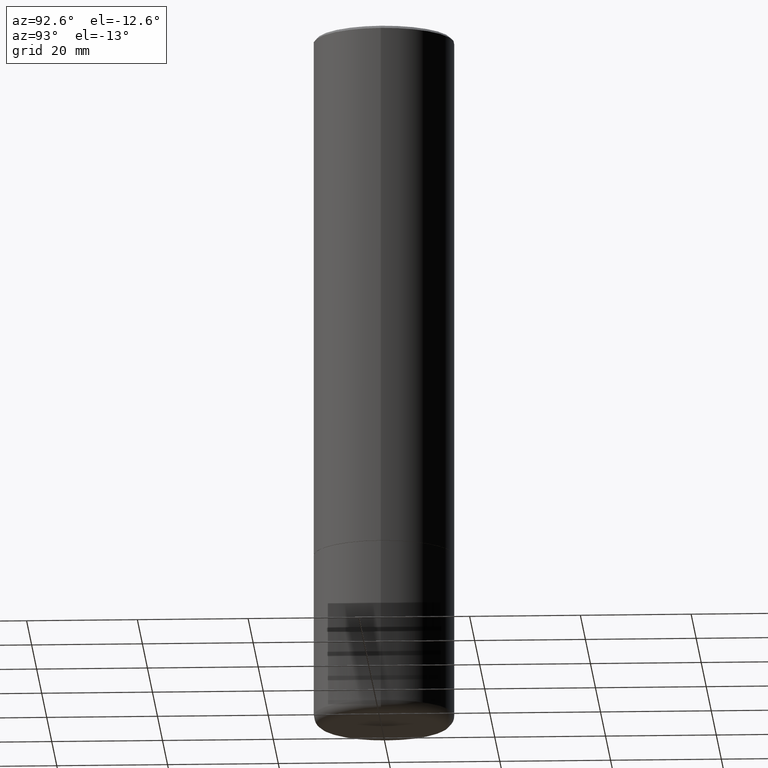
[diagram: clean part render]
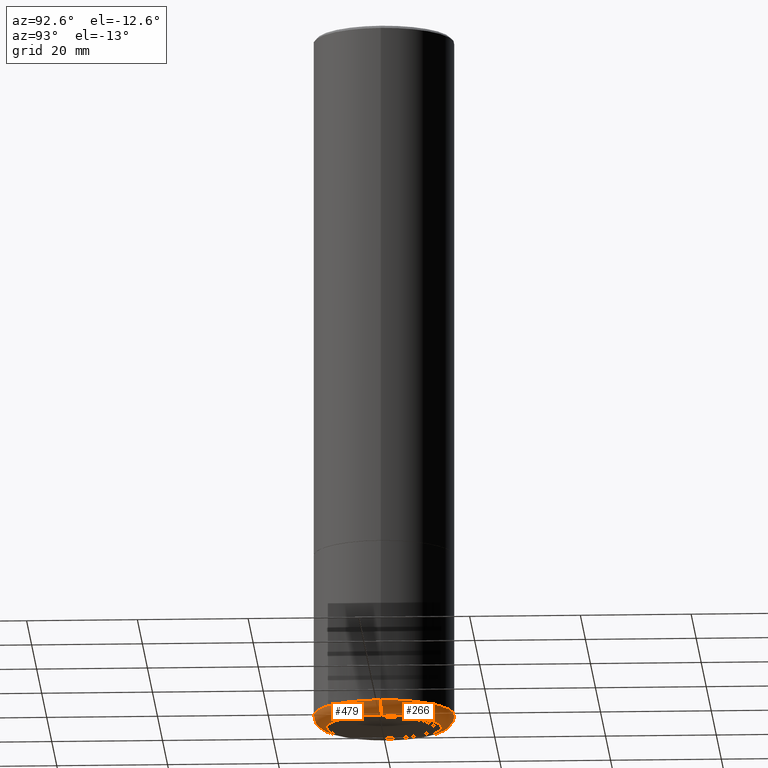
[diagram: same view with one multi-face feature highlighted, each face labeled with its STEP entity id]
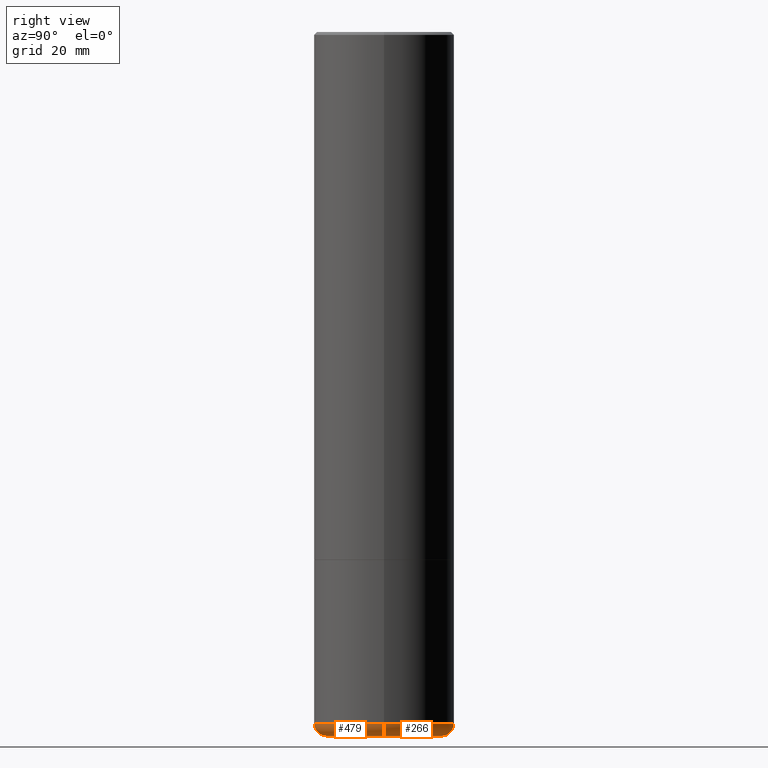
[diagram: same view with one multi-face feature highlighted, each face labeled with its STEP entity id]
A machine part, auxiliary view. The highlighted faces form ONE feature: a constant-radius fillet chain: 2 tangent blend faces with common blend radius 2.286 mm. The faces share edges in the B-rep.
A second angle (right view) of the same feature is appended — it is thin or edge-on in the first view.
Their STEP definitions:
[1] entity #266 (Torus):
#7 = DIRECTION ( 'NONE',  ( 7.105427357601001859E-15, 1.000000000000000000, -3.491481338843145583E-15 ) ) ;
#12 = DIRECTION ( 'NONE',  ( 1.000000000000000000, -6.982962677686271444E-15, 0.000000000000000000 ) ) ;
#16 = DIRECTION ( 'NONE',  ( -1.000000000000000000, 7.105427357601001859E-15, 0.000000000000000000 ) ) ;
#27 = AXIS2_PLACEMENT_3D ( 'NONE', #322, #470, #136 ) ;
#31 = EDGE_CURVE ( 'NONE', #308, #450, #186, .T. ) ;
#51 = CIRCLE ( 'NONE', #329, 0.08999999999999985789 ) ;
#56 = ORIENTED_EDGE ( 'NONE', *, *, #78, .T. ) ;
#58 = CARTESIAN_POINT ( 'NONE',  ( -0.5000000000000001110, -1.156540650091130805E-14, -4.910003426924224534 ) ) ;
#59 = DIRECTION ( 'NONE',  ( -2.445468806185136597E-29, 3.491481338843145583E-15, 1.000000000000000000 ) ) ;
#63 = AXIS2_PLACEMENT_3D ( 'NONE', #157, #411, #382 ) ;
#78 = EDGE_CURVE ( 'NONE', #199, #450, #476, .T. ) ;
#79 = EDGE_CURVE ( 'NONE', #380, #199, #180, .T. ) ;
#81 = EDGE_LOOP ( 'NONE', ( #438, #56, #191, #272 ) ) ;
#90 = CARTESIAN_POINT ( 'NONE',  ( -0.4092146118051470660, -1.407011682816334222E-14, -5.000000000000000000 ) ) ;
#136 = DIRECTION ( 'NONE',  ( 1.000000000000000000, -6.982962677686265133E-15, 0.000000000000000000 ) ) ;
#154 = DIRECTION ( 'NONE',  ( 1.000000000000000000, -6.982962677686279332E-15, 0.000000000000000000 ) ) ;
#157 = CARTESIAN_POINT ( 'NONE',  ( 1.200726021880531330E-28, -1.714318533876182370E-14, -4.910003426924224534 ) ) ;
#180 = CIRCLE ( 'NONE', #406, 0.4092146118051470660 ) ;
#186 = CIRCLE ( 'NONE', #27, 0.5000000000000001110 ) ;
#190 = CARTESIAN_POINT ( 'NONE',  ( 0.4100000000000002531, -2.000620003661319368E-14, -4.910003426924224534 ) ) ;
#191 = ORIENTED_EDGE ( 'NONE', *, *, #31, .F. ) ;
#199 = VERTEX_POINT ( 'NONE', #90 ) ;
#202 = CARTESIAN_POINT ( 'NONE',  ( 0.4092146118051470660, -2.031493705561494790E-14, -5.000000000000000000 ) ) ;
#242 = CARTESIAN_POINT ( 'NONE',  ( 0.5000000000000001110, -2.063466667760495706E-14, -4.910003426924224534 ) ) ;
#266 = ADVANCED_FACE ( 'NONE', ( #316 ), #484, .T. ) ;
#272 = ORIENTED_EDGE ( 'NONE', *, *, #421, .F. ) ;
#308 = VERTEX_POINT ( 'NONE', #242 ) ;
#316 = FACE_OUTER_BOUND ( 'NONE', #81, .T. ) ;
#322 = CARTESIAN_POINT ( 'NONE',  ( 1.200726021880531330E-28, -1.714318533876182370E-14, -4.910003426924224534 ) ) ;
#329 = AXIS2_PLACEMENT_3D ( 'NONE', #190, #490, #154 ) ;
#335 = CARTESIAN_POINT ( 'NONE',  ( -0.4100000000000002531, -1.422996012214541193E-14, -4.910003426924224534 ) ) ;
#380 = VERTEX_POINT ( 'NONE', #202 ) ;
#382 = DIRECTION ( 'NONE',  ( 1.000000000000000000, -6.982962677686265133E-15, 4.883557194083112340E-29 ) ) ;
#406 = AXIS2_PLACEMENT_3D ( 'NONE', #472, #59, #12 ) ;
#411 = DIRECTION ( 'NONE',  ( -2.445468806185136597E-29, 3.491481338843145583E-15, 1.000000000000000000 ) ) ;
#421 = EDGE_CURVE ( 'NONE', #380, #308, #51, .T. ) ;
#438 = ORIENTED_EDGE ( 'NONE', *, *, #79, .T. ) ;
#450 = VERTEX_POINT ( 'NONE', #58 ) ;
#466 = AXIS2_PLACEMENT_3D ( 'NONE', #335, #7, #16 ) ;
#470 = DIRECTION ( 'NONE',  ( -2.445468806185136597E-29, 3.491481338843145583E-15, 1.000000000000000000 ) ) ;
#472 = CARTESIAN_POINT ( 'NONE',  ( 1.222734403092568523E-28, -1.745740669421572989E-14, -5.000000000000000000 ) ) ;
#476 = CIRCLE ( 'NONE', #466, 0.08999999999999985789 ) ;
#484 = TOROIDAL_SURFACE ( 'NONE', #63, 0.4100000000000002531, 0.08999999999999987177 ) ;
#490 = DIRECTION ( 'NONE',  ( -6.982962677686266711E-15, -1.000000000000000000, 3.491481338843145583E-15 ) ) ;
[2] entity #479 (Torus):
#2 = FACE_OUTER_BOUND ( 'NONE', #224, .T. ) ;
#7 = DIRECTION ( 'NONE',  ( 7.105427357601001859E-15, 1.000000000000000000, -3.491481338843145583E-15 ) ) ;
#16 = DIRECTION ( 'NONE',  ( -1.000000000000000000, 7.105427357601001859E-15, 0.000000000000000000 ) ) ;
#51 = CIRCLE ( 'NONE', #329, 0.08999999999999985789 ) ;
#58 = CARTESIAN_POINT ( 'NONE',  ( -0.5000000000000001110, -1.156540650091130805E-14, -4.910003426924224534 ) ) ;
#73 = CARTESIAN_POINT ( 'NONE',  ( 1.200726021880531330E-28, -1.714318533876182370E-14, -4.910003426924224534 ) ) ;
#75 = DIRECTION ( 'NONE',  ( -2.445468806185136597E-29, 3.491481338843145583E-15, 1.000000000000000000 ) ) ;
#77 = AXIS2_PLACEMENT_3D ( 'NONE', #73, #75, #225 ) ;
#78 = EDGE_CURVE ( 'NONE', #199, #450, #476, .T. ) ;
#85 = ORIENTED_EDGE ( 'NONE', *, *, #482, .F. ) ;
#90 = CARTESIAN_POINT ( 'NONE',  ( -0.4092146118051470660, -1.407011682816334222E-14, -5.000000000000000000 ) ) ;
#126 = CARTESIAN_POINT ( 'NONE',  ( 1.222734403092568523E-28, -1.745740669421572989E-14, -5.000000000000000000 ) ) ;
#154 = DIRECTION ( 'NONE',  ( 1.000000000000000000, -6.982962677686279332E-15, 0.000000000000000000 ) ) ;
#158 = ORIENTED_EDGE ( 'NONE', *, *, #78, .F. ) ;
#168 = AXIS2_PLACEMENT_3D ( 'NONE', #175, #368, #181 ) ;
#175 = CARTESIAN_POINT ( 'NONE',  ( 1.200726021880531330E-28, -1.714318533876182370E-14, -4.910003426924224534 ) ) ;
#181 = DIRECTION ( 'NONE',  ( 1.000000000000000000, -6.982962677686265133E-15, 0.000000000000000000 ) ) ;
#190 = CARTESIAN_POINT ( 'NONE',  ( 0.4100000000000002531, -2.000620003661319368E-14, -4.910003426924224534 ) ) ;
#199 = VERTEX_POINT ( 'NONE', #90 ) ;
#202 = CARTESIAN_POINT ( 'NONE',  ( 0.4092146118051470660, -2.031493705561494790E-14, -5.000000000000000000 ) ) ;
#224 = EDGE_LOOP ( 'NONE', ( #158, #233, #402, #85 ) ) ;
#225 = DIRECTION ( 'NONE',  ( 1.000000000000000000, -6.982962677686265133E-15, 4.883557194083112340E-29 ) ) ;
#233 = ORIENTED_EDGE ( 'NONE', *, *, #297, .T. ) ;
#242 = CARTESIAN_POINT ( 'NONE',  ( 0.5000000000000001110, -2.063466667760495706E-14, -4.910003426924224534 ) ) ;
#253 = AXIS2_PLACEMENT_3D ( 'NONE', #126, #449, #389 ) ;
#273 = CIRCLE ( 'NONE', #168, 0.5000000000000001110 ) ;
#297 = EDGE_CURVE ( 'NONE', #199, #380, #453, .T. ) ;
#300 = TOROIDAL_SURFACE ( 'NONE', #77, 0.4100000000000002531, 0.08999999999999987177 ) ;
#308 = VERTEX_POINT ( 'NONE', #242 ) ;
#329 = AXIS2_PLACEMENT_3D ( 'NONE', #190, #490, #154 ) ;
#335 = CARTESIAN_POINT ( 'NONE',  ( -0.4100000000000002531, -1.422996012214541193E-14, -4.910003426924224534 ) ) ;
#368 = DIRECTION ( 'NONE',  ( -2.445468806185136597E-29, 3.491481338843145583E-15, 1.000000000000000000 ) ) ;
#380 = VERTEX_POINT ( 'NONE', #202 ) ;
#389 = DIRECTION ( 'NONE',  ( 1.000000000000000000, -6.982962677686271444E-15, 0.000000000000000000 ) ) ;
#402 = ORIENTED_EDGE ( 'NONE', *, *, #421, .T. ) ;
#421 = EDGE_CURVE ( 'NONE', #380, #308, #51, .T. ) ;
#449 = DIRECTION ( 'NONE',  ( -2.445468806185136597E-29, 3.491481338843145583E-15, 1.000000000000000000 ) ) ;
#450 = VERTEX_POINT ( 'NONE', #58 ) ;
#453 = CIRCLE ( 'NONE', #253, 0.4092146118051470660 ) ;
#466 = AXIS2_PLACEMENT_3D ( 'NONE', #335, #7, #16 ) ;
#476 = CIRCLE ( 'NONE', #466, 0.08999999999999985789 ) ;
#479 = ADVANCED_FACE ( 'NONE', ( #2 ), #300, .T. ) ;
#482 = EDGE_CURVE ( 'NONE', #450, #308, #273, .T. ) ;
#490 = DIRECTION ( 'NONE',  ( -6.982962677686266711E-15, -1.000000000000000000, 3.491481338843145583E-15 ) ) ;